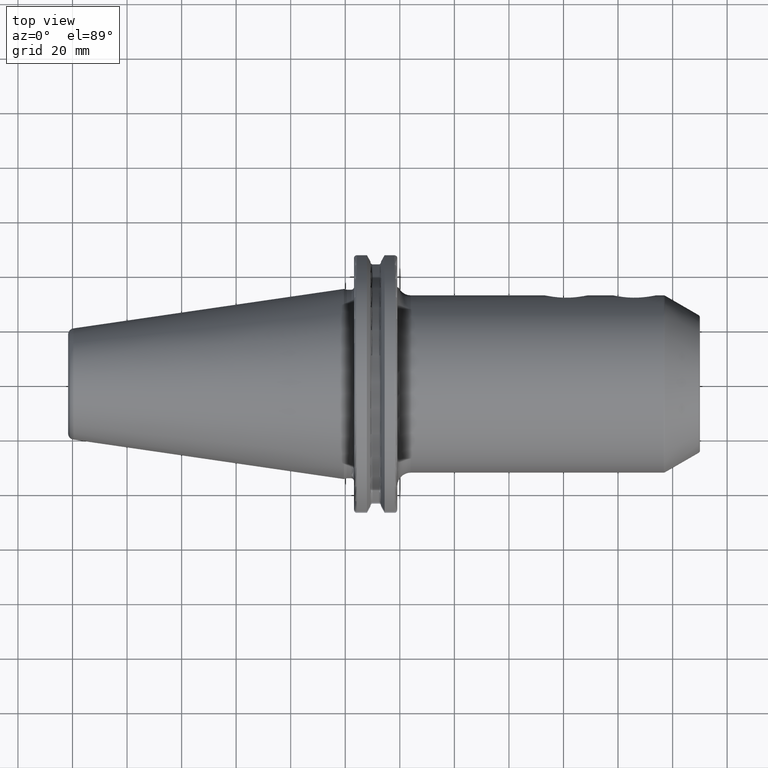
[diagram: clean part render]
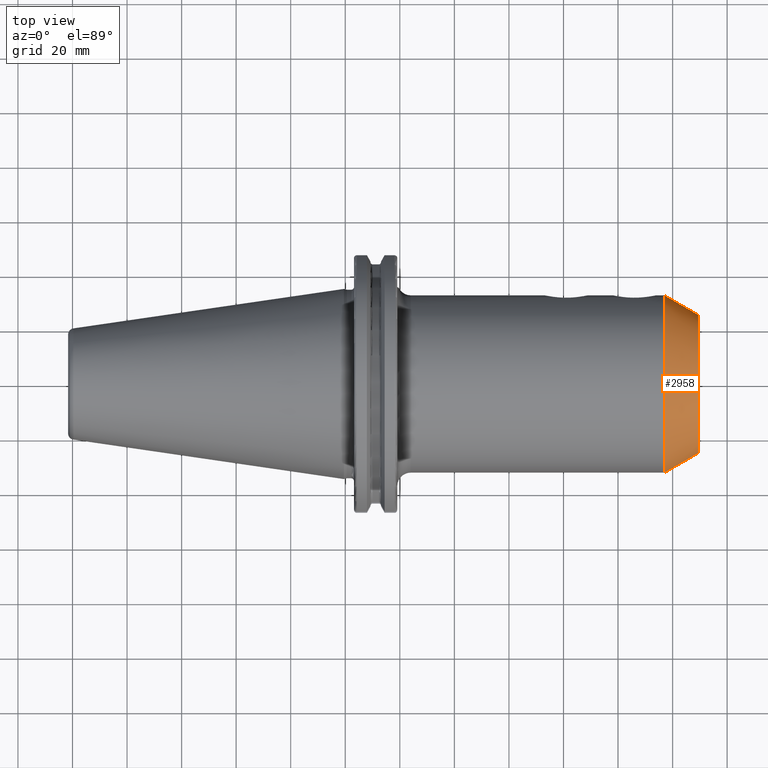
[diagram: same view with one face highlighted and labeled with its STEP entity id]
A machine part, top view. The second image highlights one B-rep face of the part: STEP entity #2958.
In plain terms, the highlighted conical surface has half-angle 30 deg.
Its self-contained STEP definition (entity closure, byte-faithful):
#1148=CARTESIAN_POINT('',(1.172320508076E2,0.E0,0.E0));
#1149=DIRECTION('',(-1.E0,0.E0,0.E0));
#1150=DIRECTION('',(0.E0,-1.E0,0.E0));
#1151=AXIS2_PLACEMENT_3D('',#1148,#1149,#1150);
#1153=CARTESIAN_POINT('',(1.295E2,0.E0,0.E0));
#1154=DIRECTION('',(-1.E0,0.E0,0.E0));
#1155=DIRECTION('',(0.E0,-1.E0,0.E0));
#1156=AXIS2_PLACEMENT_3D('',#1153,#1154,#1155);
#1163=DIRECTION('',(-8.660254037844E-1,-5.E-1,1.598834714648E-13));
#1164=VECTOR('',#1163,1.416580753731E1);
#1165=CARTESIAN_POINT('',(1.295E2,-2.528312163513E1,6.521681337556E-13));
#1166=LINE('',#1165,#1164);
#1172=DIRECTION('',(-8.660254037844E-1,5.E-1,-1.617444036542E-13));
#1173=VECTOR('',#1172,1.416580753731E1);
#1174=CARTESIAN_POINT('',(1.295E2,2.528312163513E1,-6.529422061052E-13));
#1175=LINE('',#1174,#1173);
#1789=CARTESIAN_POINT('',(1.172320508076E2,3.236602540378E1,0.E0));
#1790=CARTESIAN_POINT('',(1.172320508076E2,-3.236602540378E1,0.E0));
#1791=VERTEX_POINT('',#1789);
#1792=VERTEX_POINT('',#1790);
#1793=CARTESIAN_POINT('',(1.295E2,2.528312163513E1,0.E0));
#1794=CARTESIAN_POINT('',(1.295E2,-2.528312163513E1,0.E0));
#1795=VERTEX_POINT('',#1793);
#1796=VERTEX_POINT('',#1794);
#2944=CARTESIAN_POINT('',(1.233660254038E2,0.E0,0.E0));
#2945=DIRECTION('',(-1.E0,0.E0,0.E0));
#2946=DIRECTION('',(0.E0,1.E0,0.E0));
#2947=AXIS2_PLACEMENT_3D('',#2944,#2945,#2946);
#2948=CONICAL_SURFACE('',#2947,2.882457351946E1,3.E1);
#2949=ORIENTED_EDGE('',*,*,#2938,.T.);
#2951=ORIENTED_EDGE('',*,*,#2950,.F.);
#2953=ORIENTED_EDGE('',*,*,#2952,.F.);
#2955=ORIENTED_EDGE('',*,*,#2954,.T.);
#2956=EDGE_LOOP('',(#2949,#2951,#2953,#2955));
#2957=FACE_OUTER_BOUND('',#2956,.F.);
#2958=ADVANCED_FACE('',(#2957),#2948,.T.);
#1152=CIRCLE('',#1151,3.236602540378E1);
#1157=CIRCLE('',#1156,2.528312163513E1);
#2938=EDGE_CURVE('',#1792,#1791,#1152,.T.);
#2950=EDGE_CURVE('',#1795,#1791,#1175,.T.);
#2952=EDGE_CURVE('',#1796,#1795,#1157,.T.);
#2954=EDGE_CURVE('',#1796,#1792,#1166,.T.);